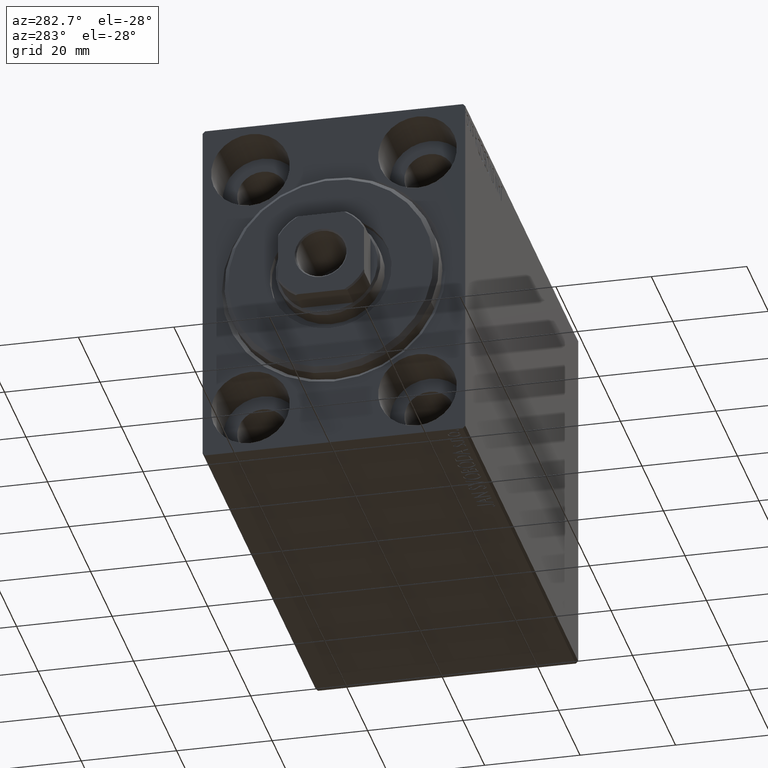
[diagram: clean part render]
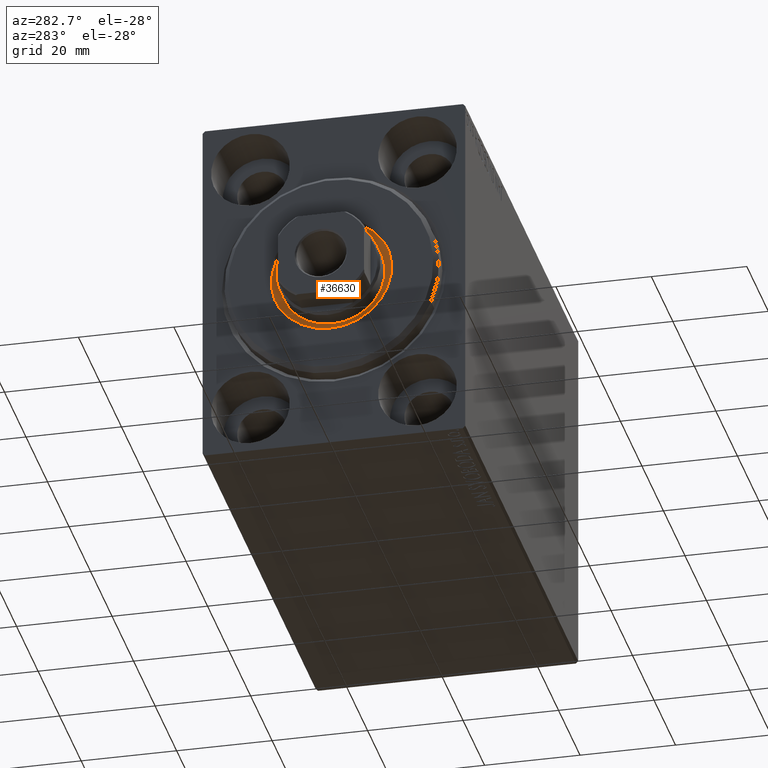
[diagram: same view with one face highlighted and labeled with its STEP entity id]
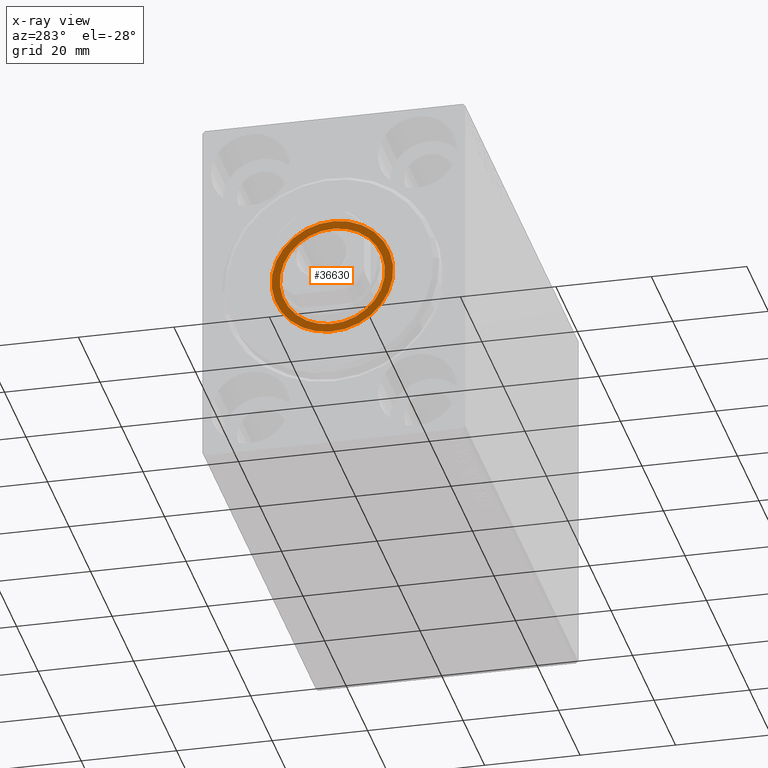
[diagram: x-ray of the same camera — body ghosted, the highlighted face saturated]
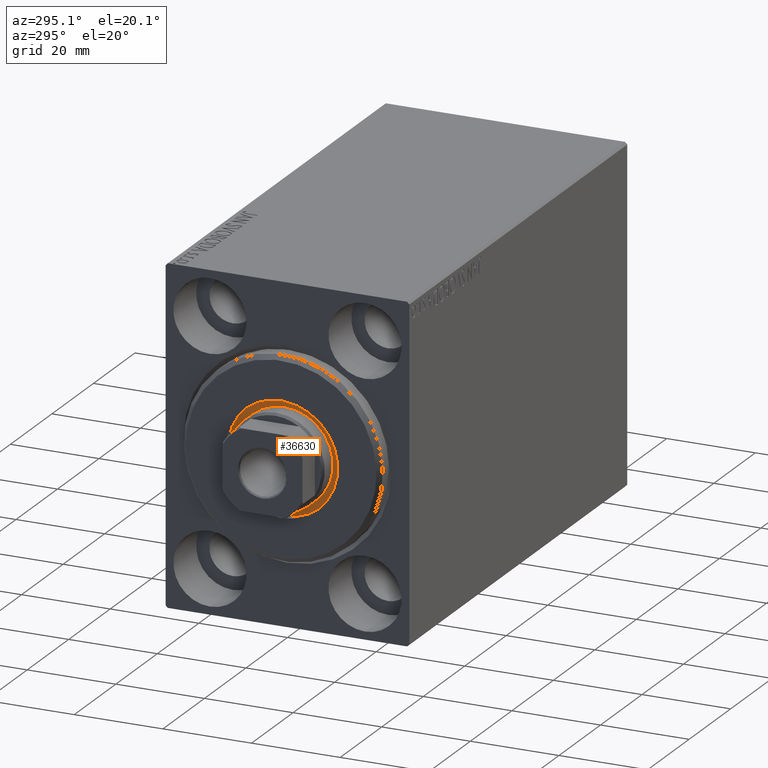
[diagram: same view with one face highlighted and labeled with its STEP entity id]
A machine part, auxiliary view. The second image highlights one B-rep face of the part: STEP entity #36630.
The next image is the same camera in x-ray: the body ghosted, the highlighted face saturated — about 0% of this face is hidden behind the body in this view.
A second angle (auxiliary view) of the same face is appended — the face is thin or edge-on in the first view.
In plain terms, the highlighted planar face has unit normal (-1, 0, 0).
Its self-contained STEP definition (entity closure, byte-faithful):
#236 = VERTEX_POINT ( 'NONE', #1417 ) ;
#1417 = CARTESIAN_POINT ( 'NONE',  ( 1.499999999999999556, 0.000000000000000000, -11.00000000000000000 ) ) ;
#1483 = ORIENTED_EDGE ( 'NONE', *, *, #42513, .T. ) ;
#1974 = AXIS2_PLACEMENT_3D ( 'NONE', #34107, #10513, #23982 ) ;
#3508 = CIRCLE ( 'NONE', #29566, 12.75000000000000000 ) ;
#3596 = AXIS2_PLACEMENT_3D ( 'NONE', #10108, #29961, #13195 ) ;
#7647 = CIRCLE ( 'NONE', #37927, 11.00000000000000000 ) ;
#10108 = CARTESIAN_POINT ( 'NONE',  ( 1.500000000000000000, 0.000000000000000000, 0.000000000000000000 ) ) ;
#10401 = DIRECTION ( 'NONE',  ( 1.000000000000000000, 0.000000000000000000, 0.000000000000000000 ) ) ;
#10513 = DIRECTION ( 'NONE',  ( 1.000000000000000000, 0.000000000000000000, 0.000000000000000000 ) ) ;
#10915 = EDGE_LOOP ( 'NONE', ( #1483, #42118 ) ) ;
#12078 = VERTEX_POINT ( 'NONE', #42083 ) ;
#12427 = CARTESIAN_POINT ( 'NONE',  ( 1.500000000000000000, 1.561424668912874914E-15, -12.75000000000000000 ) ) ;
#13029 = CARTESIAN_POINT ( 'NONE',  ( 1.499999999999999556, 1.347111479062088405E-15, 11.00000000000000000 ) ) ;
#13195 = DIRECTION ( 'NONE',  ( 0.000000000000000000, 0.000000000000000000, -1.000000000000000000 ) ) ;
#14149 = VERTEX_POINT ( 'NONE', #12427 ) ;
#16001 = DIRECTION ( 'NONE',  ( 0.000000000000000000, 0.000000000000000000, -1.000000000000000000 ) ) ;
#19327 = FACE_BOUND ( 'NONE', #31659, .T. ) ;
#20660 = ORIENTED_EDGE ( 'NONE', *, *, #23045, .F. ) ;
#21030 = VERTEX_POINT ( 'NONE', #13029 ) ;
#22203 = CARTESIAN_POINT ( 'NONE',  ( 1.500000000000000000, 0.000000000000000000, 0.000000000000000000 ) ) ;
#23045 = EDGE_CURVE ( 'NONE', #21030, #236, #38554, .T. ) ;
#23982 = DIRECTION ( 'NONE',  ( 0.000000000000000000, 0.000000000000000000, -1.000000000000000000 ) ) ;
#25730 = DIRECTION ( 'NONE',  ( 1.000000000000000000, 0.000000000000000000, 0.000000000000000000 ) ) ;
#25885 = CARTESIAN_POINT ( 'NONE',  ( 1.500000000000000000, 0.000000000000000000, 0.000000000000000000 ) ) ;
#26530 = CARTESIAN_POINT ( 'NONE',  ( 1.499999999999999556, 0.000000000000000000, 0.000000000000000000 ) ) ;
#26961 = DIRECTION ( 'NONE',  ( 0.000000000000000000, 0.000000000000000000, -1.000000000000000000 ) ) ;
#28922 = CIRCLE ( 'NONE', #3596, 12.75000000000000000 ) ;
#29022 = PLANE ( 'NONE',  #29622 ) ;
#29566 = AXIS2_PLACEMENT_3D ( 'NONE', #25885, #39323, #36230 ) ;
#29622 = AXIS2_PLACEMENT_3D ( 'NONE', #22203, #25730, #16001 ) ;
#29717 = EDGE_CURVE ( 'NONE', #236, #21030, #7647, .T. ) ;
#29961 = DIRECTION ( 'NONE',  ( 1.000000000000000000, 0.000000000000000000, 0.000000000000000000 ) ) ;
#31659 = EDGE_LOOP ( 'NONE', ( #38112, #20660 ) ) ;
#33033 = EDGE_CURVE ( 'NONE', #14149, #12078, #3508, .T. ) ;
#34107 = CARTESIAN_POINT ( 'NONE',  ( 1.499999999999999556, 0.000000000000000000, 0.000000000000000000 ) ) ;
#35404 = FACE_OUTER_BOUND ( 'NONE', #10915, .T. ) ;
#36230 = DIRECTION ( 'NONE',  ( 0.000000000000000000, 0.000000000000000000, -1.000000000000000000 ) ) ;
#36630 = ADVANCED_FACE ( 'NONE', ( #19327, #35404 ), #29022, .T. ) ;
#37927 = AXIS2_PLACEMENT_3D ( 'NONE', #26530, #10401, #26961 ) ;
#38112 = ORIENTED_EDGE ( 'NONE', *, *, #29717, .F. ) ;
#38554 = CIRCLE ( 'NONE', #1974, 11.00000000000000000 ) ;
#39323 = DIRECTION ( 'NONE',  ( 1.000000000000000000, 0.000000000000000000, 0.000000000000000000 ) ) ;
#42083 = CARTESIAN_POINT ( 'NONE',  ( 1.500000000000000000, 0.000000000000000000, 12.75000000000000000 ) ) ;
#42118 = ORIENTED_EDGE ( 'NONE', *, *, #33033, .T. ) ;
#42513 = EDGE_CURVE ( 'NONE', #12078, #14149, #28922, .T. ) ;